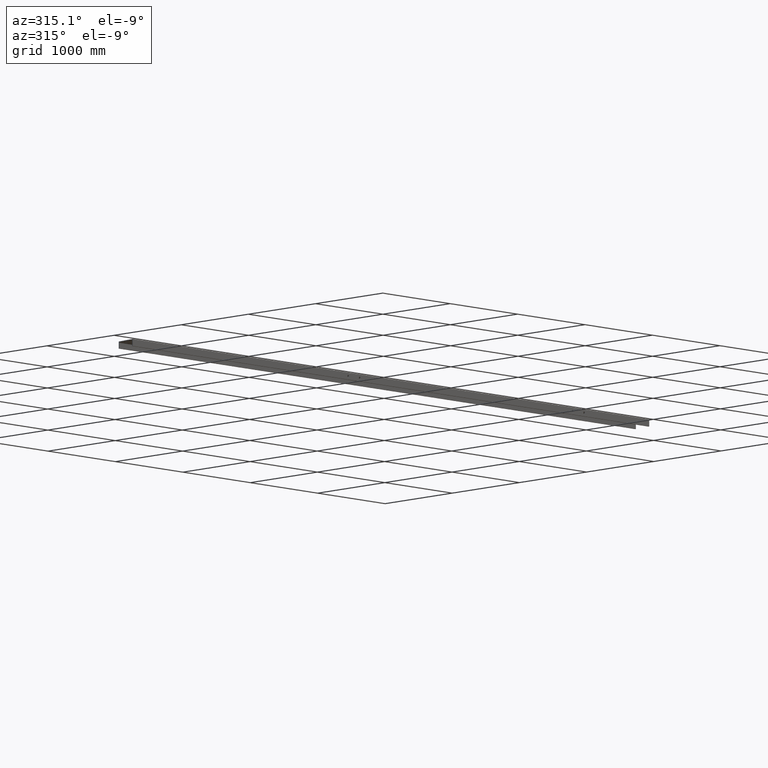
[diagram: clean part render]
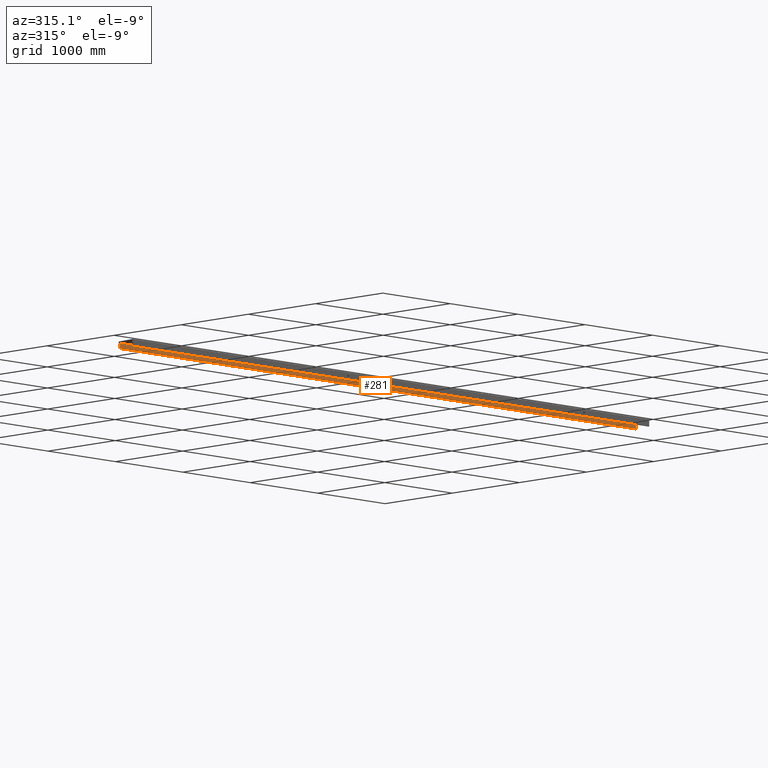
[diagram: same view with one face highlighted and labeled with its STEP entity id]
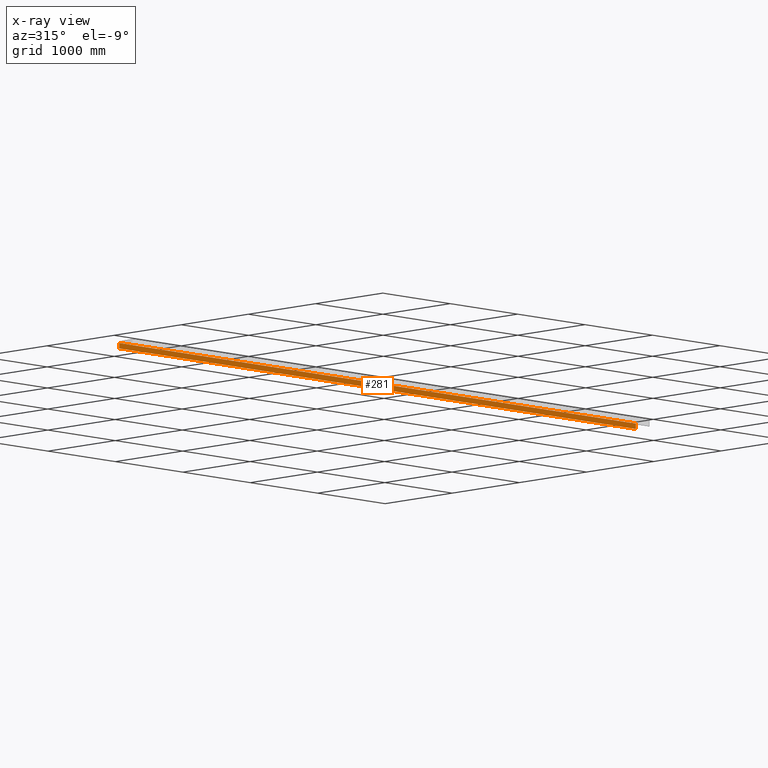
[diagram: x-ray of the same camera — body ghosted, the highlighted face saturated]
A machine part, auxiliary view. The second image highlights one B-rep face of the part: STEP entity #281.
The next image is the same camera in x-ray: the body ghosted, the highlighted face saturated — about 0% of this face is hidden behind the body in this view.
In plain terms, the highlighted planar face has unit normal (-0, 1, -0).
Its self-contained STEP definition (entity closure, byte-faithful):
#55 = LINE ( 'NONE', #730, #208 ) ;
#127 = DIRECTION ( 'NONE',  ( 0.000000000000000000, 1.007060708177685505E-14, 1.000000000000000000 ) ) ;
#184 = DIRECTION ( 'NONE',  ( 8.810639544792988904E-16, 1.007060708177685663E-14, 1.000000000000000000 ) ) ;
#196 = VECTOR ( 'NONE', #720, 1000.000000000000000 ) ;
#208 = VECTOR ( 'NONE', #184, 1000.000000000000000 ) ;
#227 = DIRECTION ( 'NONE',  ( 1.000000000000000000, 3.061616997868382648E-16, -0.000000000000000000 ) ) ;
#281 = ADVANCED_FACE ( 'NONE', ( #538 ), #826, .F. ) ;
#318 = CARTESIAN_POINT ( 'NONE',  ( -3821.927471351350505, 102.9999999999984794, -61.30000000000111271 ) ) ;
#327 = DIRECTION ( 'NONE',  ( -8.810639544792883394E-16, -1.007060708177685505E-14, -1.000000000000000000 ) ) ;
#333 = LINE ( 'NONE', #318, #346 ) ;
#336 = AXIS2_PLACEMENT_3D ( 'NONE', #821, #758, #127 ) ;
#346 = VECTOR ( 'NONE', #327, 1000.000000000000000 ) ;
#375 = CARTESIAN_POINT ( 'NONE',  ( -3841.000000000000000, 102.9999999999984794, -61.30000000000109850 ) ) ;
#420 = LINE ( 'NONE', #375, #434 ) ;
#421 = EDGE_LOOP ( 'NONE', ( #689, #648, #479, #875 ) ) ;
#434 = VECTOR ( 'NONE', #227, 1000.000000000000000 ) ;
#440 = CARTESIAN_POINT ( 'NONE',  ( -3841.000000000000000, 102.9999999999990479, -4.800000000001055867 ) ) ;
#447 = EDGE_CURVE ( 'NONE', #745, #481, #420, .T. ) ;
#479 = ORIENTED_EDGE ( 'NONE', *, *, #638, .F. ) ;
#481 = VERTEX_POINT ( 'NONE', #550 ) ;
#512 = VERTEX_POINT ( 'NONE', #839 ) ;
#538 = FACE_OUTER_BOUND ( 'NONE', #421, .T. ) ;
#550 = CARTESIAN_POINT ( 'NONE',  ( 3839.950136037688480, 103.0000000000007958, -61.30000000000121219 ) ) ;
#566 = LINE ( 'NONE', #440, #196 ) ;
#589 = EDGE_CURVE ( 'NONE', #481, #849, #55, .T. ) ;
#596 = EDGE_CURVE ( 'NONE', #512, #745, #333, .T. ) ;
#612 = CARTESIAN_POINT ( 'NONE',  ( -3821.927471351350505, 102.9999999999984794, -61.30000000000121219 ) ) ;
#638 = EDGE_CURVE ( 'NONE', #512, #849, #566, .T. ) ;
#643 = CARTESIAN_POINT ( 'NONE',  ( 3839.950136037689390, 103.0000000000013927, -4.800000000001060307 ) ) ;
#648 = ORIENTED_EDGE ( 'NONE', *, *, #589, .T. ) ;
#689 = ORIENTED_EDGE ( 'NONE', *, *, #447, .T. ) ;
#720 = DIRECTION ( 'NONE',  ( 1.000000000000000000, 3.061616997868382648E-16, -0.000000000000000000 ) ) ;
#730 = CARTESIAN_POINT ( 'NONE',  ( 3839.950136037689390, 103.0000000000008242, -61.30000000000786287 ) ) ;
#745 = VERTEX_POINT ( 'NONE', #612 ) ;
#758 = DIRECTION ( 'NONE',  ( -3.061616997868382155E-16, 1.000000000000000000, -1.007060708177685505E-14 ) ) ;
#821 = CARTESIAN_POINT ( 'NONE',  ( -3841.000000000000000, 102.9999999999984794, -61.30000000000109850 ) ) ;
#826 = PLANE ( 'NONE',  #336 ) ;
#839 = CARTESIAN_POINT ( 'NONE',  ( -3821.927471351350505, 102.9999999999990479, -4.800000000001060307 ) ) ;
#849 = VERTEX_POINT ( 'NONE', #643 ) ;
#875 = ORIENTED_EDGE ( 'NONE', *, *, #596, .T. ) ;